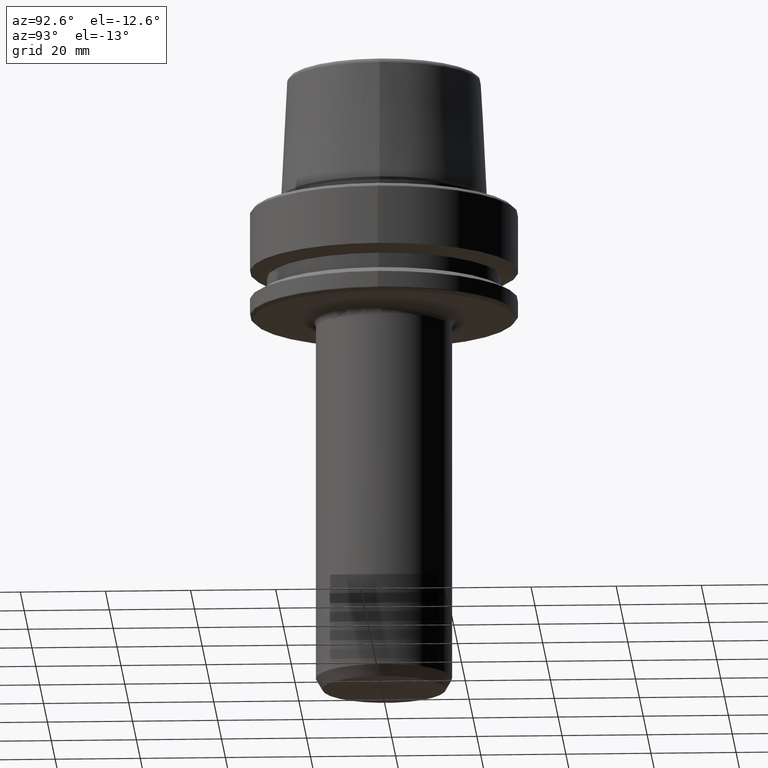
[diagram: clean part render]
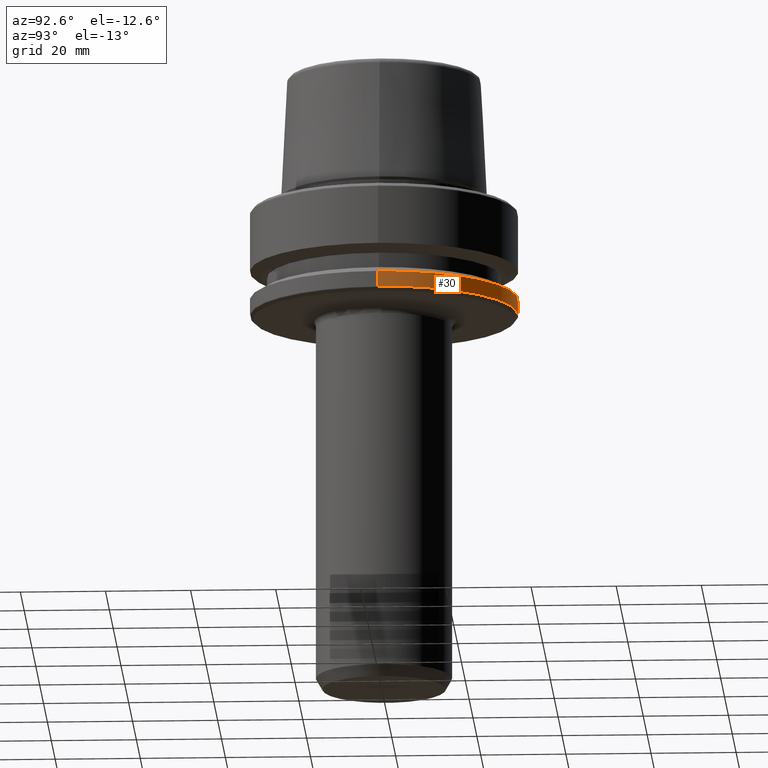
[diagram: same view with one face highlighted and labeled with its STEP entity id]
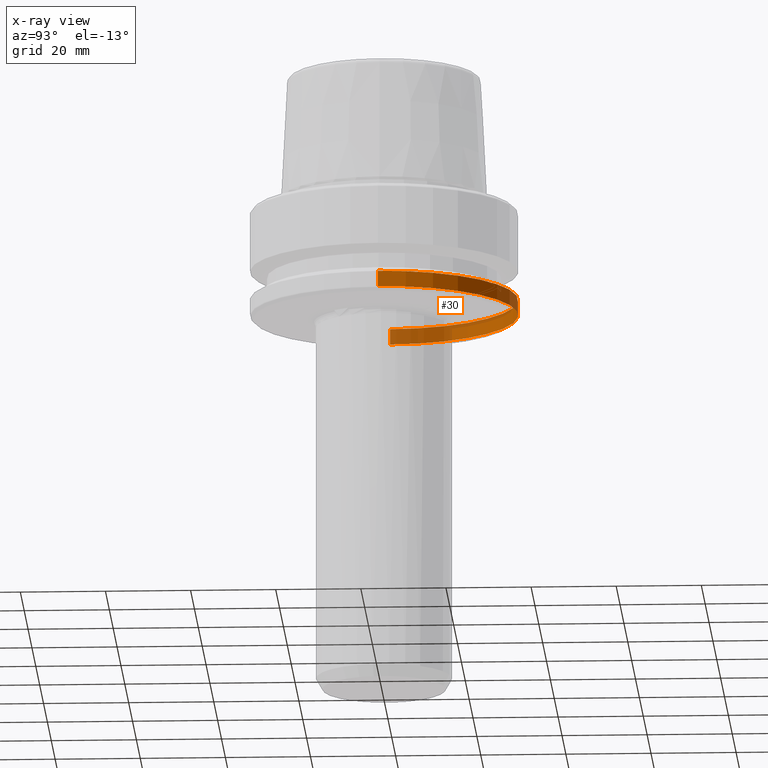
[diagram: x-ray of the same camera — body ghosted, the highlighted face saturated]
A machine part, auxiliary view. The second image highlights one B-rep face of the part: STEP entity #30.
The next image is the same camera in x-ray: the body ghosted, the highlighted face saturated — about 28% of this face is hidden behind the body in this view.
In plain terms, the highlighted cylindrical surface (partial cylindrical patch) has radius 31.5 mm, axis along (-0, -0, 1).
Its self-contained STEP definition (entity closure, byte-faithful):
#3 = FACE_OUTER_BOUND ( 'NONE', #1183, .T. ) ;
#30 = ADVANCED_FACE ( 'NONE', ( #3 ), #283, .T. ) ;
#31 = EDGE_CURVE ( 'NONE', #689, #598, #591, .T. ) ;
#77 = CARTESIAN_POINT ( 'NONE',  ( 31.50000000000000000, 0.0000000000000000000, -21.37749907475931700 ) ) ;
#108 = VECTOR ( 'NONE', #813, 1000.000000000000000 ) ;
#137 = ORIENTED_EDGE ( 'NONE', *, *, #1066, .F. ) ;
#168 = CARTESIAN_POINT ( 'NONE',  ( 0.0000000000000000000, 0.0000000000000000000, 78.96908074195309300 ) ) ;
#227 = DIRECTION ( 'NONE',  ( 1.000000000000000000, 0.0000000000000000000, 0.0000000000000000000 ) ) ;
#232 = CARTESIAN_POINT ( 'NONE',  ( 31.50000000000000000, 0.0000000000000000000, 78.96908074195309300 ) ) ;
#252 = AXIS2_PLACEMENT_3D ( 'NONE', #1009, #915, #1193 ) ;
#263 = DIRECTION ( 'NONE',  ( -0.0000000000000000000, -0.0000000000000000000, 1.000000000000000000 ) ) ;
#283 = CYLINDRICAL_SURFACE ( 'NONE', #919, 31.50000000000000000 ) ;
#323 = AXIS2_PLACEMENT_3D ( 'NONE', #609, #944, #382 ) ;
#382 = DIRECTION ( 'NONE',  ( 1.000000000000000000, 0.0000000000000000000, 0.0000000000000000000 ) ) ;
#462 = EDGE_CURVE ( 'NONE', #689, #738, #804, .T. ) ;
#473 = ORIENTED_EDGE ( 'NONE', *, *, #462, .F. ) ;
#591 = CIRCLE ( 'NONE', #323, 31.50000000000000000 ) ;
#598 = VERTEX_POINT ( 'NONE', #1268 ) ;
#608 = ORIENTED_EDGE ( 'NONE', *, *, #31, .T. ) ;
#609 = CARTESIAN_POINT ( 'NONE',  ( 0.0000000000000000000, 0.0000000000000000000, -25.03431457505077200 ) ) ;
#689 = VERTEX_POINT ( 'NONE', #1027 ) ;
#690 = CARTESIAN_POINT ( 'NONE',  ( -31.50000000000000000, 3.857637417314162700E-015, -21.37749907475931700 ) ) ;
#697 = CARTESIAN_POINT ( 'NONE',  ( -31.50000000000000000, 3.857637417314162700E-015, 78.96908074195309300 ) ) ;
#730 = EDGE_CURVE ( 'NONE', #598, #1196, #1159, .T. ) ;
#738 = VERTEX_POINT ( 'NONE', #77 ) ;
#759 = CIRCLE ( 'NONE', #252, 31.50000000000000000 ) ;
#804 = LINE ( 'NONE', #232, #1207 ) ;
#813 = DIRECTION ( 'NONE',  ( -0.0000000000000000000, -0.0000000000000000000, 1.000000000000000000 ) ) ;
#915 = DIRECTION ( 'NONE',  ( -0.0000000000000000000, -0.0000000000000000000, 1.000000000000000000 ) ) ;
#919 = AXIS2_PLACEMENT_3D ( 'NONE', #168, #1095, #227 ) ;
#944 = DIRECTION ( 'NONE',  ( -0.0000000000000000000, -0.0000000000000000000, 1.000000000000000000 ) ) ;
#1009 = CARTESIAN_POINT ( 'NONE',  ( 0.0000000000000000000, 0.0000000000000000000, -21.37749907475931700 ) ) ;
#1010 = ORIENTED_EDGE ( 'NONE', *, *, #730, .T. ) ;
#1027 = CARTESIAN_POINT ( 'NONE',  ( 31.50000000000000000, 0.0000000000000000000, -25.03431457505077200 ) ) ;
#1066 = EDGE_CURVE ( 'NONE', #738, #1196, #759, .T. ) ;
#1095 = DIRECTION ( 'NONE',  ( -0.0000000000000000000, -0.0000000000000000000, 1.000000000000000000 ) ) ;
#1159 = LINE ( 'NONE', #697, #108 ) ;
#1183 = EDGE_LOOP ( 'NONE', ( #608, #1010, #137, #473 ) ) ;
#1193 = DIRECTION ( 'NONE',  ( 1.000000000000000000, 0.0000000000000000000, 0.0000000000000000000 ) ) ;
#1196 = VERTEX_POINT ( 'NONE', #690 ) ;
#1207 = VECTOR ( 'NONE', #263, 1000.000000000000000 ) ;
#1268 = CARTESIAN_POINT ( 'NONE',  ( -31.50000000000000000, 3.857637417314161900E-015, -25.03431457505077200 ) ) ;